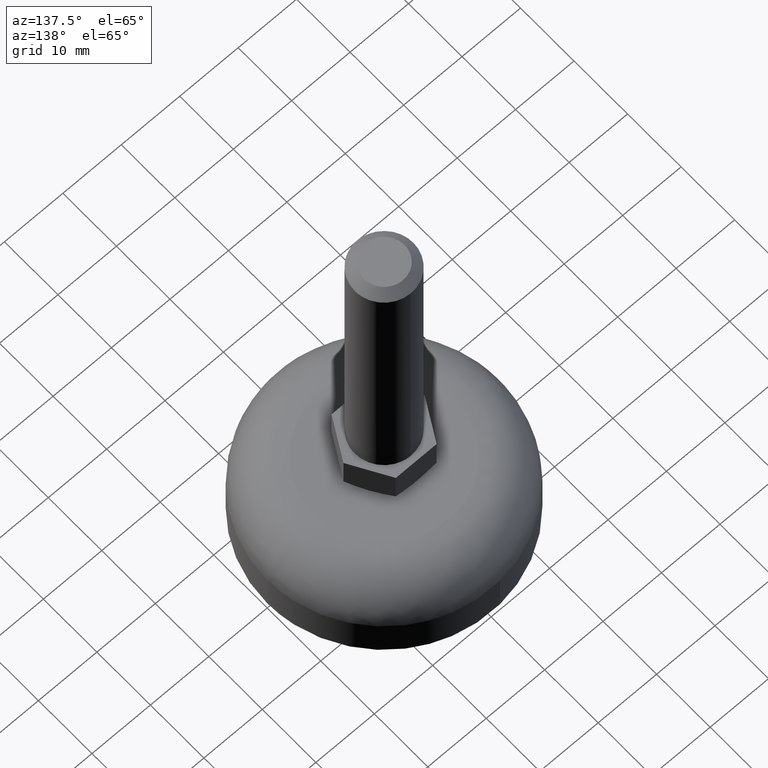
[diagram: clean part render]
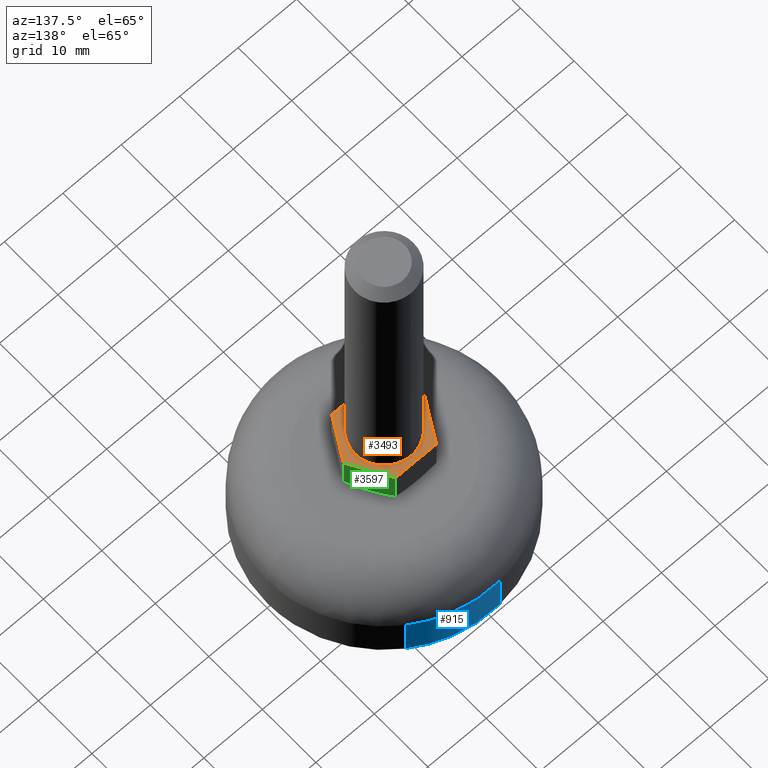
[diagram: same view with three faces highlighted in distinct colors, each labeled with its STEP entity id]
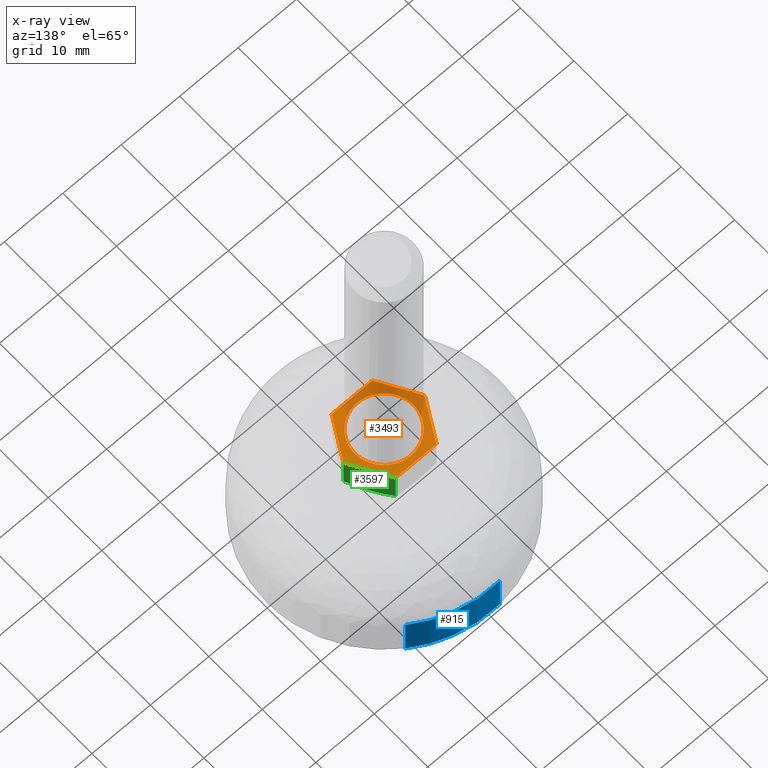
[diagram: x-ray of the same camera — body ghosted, the three highlighted faces saturated]
A machine part, auxiliary view with three faces highlighted in distinct colors.
The next image is the same camera in x-ray (body ghosted, the three faces saturated) — at least one of them is partly hidden behind the body in this view.
Their STEP definitions:

[orange] entity #3493 — the highlighted face is a freeform B-spline surface patch.
#2852=CARTESIAN_POINT('',(-5.0,0.0,23.0));
#2853=VERTEX_POINT('',#2852);
#2854=CARTESIAN_POINT('',(-0.620631688118916,-4.961332110193019,23.000000000000011));
#2855=VERTEX_POINT('',#2854);
#2856=CARTESIAN_POINT('',(-5.0,0.0,23.0));
#2857=CARTESIAN_POINT('',(-5.0,-4.413500461777868,22.999999999999993));
#2858=CARTESIAN_POINT('',(-0.620631688118916,-4.961332110193019,23.000000000000018));
#2866=(BOUNDED_CURVE()B_SPLINE_CURVE(2,(#2856,#2857,#2858),.UNSPECIFIED.,.F.,.U.)B_SPLINE_CURVE_WITH_KNOTS((3,3),(0.500000000000000,0.728526353920877),.UNSPECIFIED.)CURVE()GEOMETRIC_REPRESENTATION_ITEM()RATIONAL_B_SPLINE_CURVE((1.0,0.732264722465648,0.954005979258652))REPRESENTATION_ITEM(''));
#2867=EDGE_CURVE('',#2853,#2855,#2866,.T.);
#2876=CARTESIAN_POINT('',(0.043632677597368,4.999809615319935,23.0));
#2877=VERTEX_POINT('',#2876);
#2883=CARTESIAN_POINT('',(0.043632677597368,4.999809615319935,23.000000000000004));
#2884=CARTESIAN_POINT('',(0.021816754209012,5.0,23.000000000000004));
#2885=CARTESIAN_POINT('',(0.0,5.0,23.0));
#2886=CARTESIAN_POINT('',(-5.000000000000001,5.000000000000001,22.999999999999993));
#2887=CARTESIAN_POINT('',(-5.0,0.0,23.0));
#2895=(BOUNDED_CURVE()B_SPLINE_CURVE(2,(#2883,#2884,#2885,#2886,#2887),.UNSPECIFIED.,.F.,.U.)B_SPLINE_CURVE_WITH_KNOTS((3,2,3),(0.248460105657580,0.250000000000000,0.500000000000000),.UNSPECIFIED.)CURVE()GEOMETRIC_REPRESENTATION_ITEM()RATIONAL_B_SPLINE_CURVE((0.996414028083203,0.998195901557663,1.0,0.707106781186548,1.0))REPRESENTATION_ITEM(''));
#2896=EDGE_CURVE('',#2877,#2853,#2895,.T.);
#2923=CARTESIAN_POINT('',(5.0,0.0,23.0));
#2924=VERTEX_POINT('',#2923);
#2925=CARTESIAN_POINT('',(-0.620631688118916,-4.961332110193019,23.000000000000018));
#2926=CARTESIAN_POINT('',(-0.311520427817223,-5.0,23.0));
#2927=CARTESIAN_POINT('',(0.0,-5.0,23.0));
#2928=CARTESIAN_POINT('',(5.000000000000001,-5.000000000000001,22.999999999999993));
#2929=CARTESIAN_POINT('',(5.0,0.0,23.0));
#2937=(BOUNDED_CURVE()B_SPLINE_CURVE(2,(#2925,#2926,#2927,#2928,#2929),.UNSPECIFIED.,.F.,.U.)B_SPLINE_CURVE_WITH_KNOTS((3,2,3),(0.728526353920877,0.750000000000000,1.0),.UNSPECIFIED.)CURVE()GEOMETRIC_REPRESENTATION_ITEM()RATIONAL_B_SPLINE_CURVE((0.954005979258652,0.974842058720899,1.0,0.707106781186548,1.0))REPRESENTATION_ITEM(''));
#2938=EDGE_CURVE('',#2855,#2924,#2937,.T.);
#2940=CARTESIAN_POINT('',(5.0,0.0,23.0));
#2941=CARTESIAN_POINT('',(4.999999999999998,4.956556052765714,23.000000000000004));
#2942=CARTESIAN_POINT('',(0.043632677597368,4.999809615319935,23.000000000000004));
#2950=(BOUNDED_CURVE()B_SPLINE_CURVE(2,(#2940,#2941,#2942),.UNSPECIFIED.,.F.,.U.)B_SPLINE_CURVE_WITH_KNOTS((3,3),(0.0,0.248460105657580),.UNSPECIFIED.)CURVE()GEOMETRIC_REPRESENTATION_ITEM()RATIONAL_B_SPLINE_CURVE((1.0,0.708910879628884,0.996414028083203))REPRESENTATION_ITEM(''));
#2951=EDGE_CURVE('',#2924,#2877,#2950,.T.);
#3438=CARTESIAN_POINT('',(-7.644304792915282,-6.599399976741669,23.0));
#3439=CARTESIAN_POINT('',(7.644304295812545,-6.599399976741669,23.0));
#3440=CARTESIAN_POINT('',(-7.644304792915282,6.599400298606649,23.0));
#3441=CARTESIAN_POINT('',(7.644304295812545,6.599400298606649,23.0));
#3442=B_SPLINE_SURFACE_WITH_KNOTS('',1,1,((#3438,#3440),(#3439,#3441)),.UNSPECIFIED.,.F.,.F.,.U.,(2,2),(2,2),(0.0,15.288609088727830),(0.0,13.198800275348320),.UNSPECIFIED.);
#3443=CARTESIAN_POINT('',(-6.949999999999999,0.0,23.0));
#3444=VERTEX_POINT('',#3443);
#3445=CARTESIAN_POINT('',(-3.485898000000000,5.999999999999901,23.0));
#3446=VERTEX_POINT('',#3445);
#3447=CARTESIAN_POINT('',(-6.949999999999999,0.0,23.0));
#3448=CARTESIAN_POINT('',(-3.485898000000000,5.999999999999901,23.0));
#3449=QUASI_UNIFORM_CURVE('',1,(#3447,#3448),.UNSPECIFIED.,.F.,.U.);
#3450=EDGE_CURVE('',#3444,#3446,#3449,.T.);
#3451=ORIENTED_EDGE('',*,*,#3450,.F.);
#3452=CARTESIAN_POINT('',(-3.485898000000000,-6.0,23.0));
#3453=VERTEX_POINT('',#3452);
#3454=CARTESIAN_POINT('',(-3.485898000000000,-6.0,23.0));
#3455=CARTESIAN_POINT('',(-6.949999999999999,0.0,23.0));
#3456=QUASI_UNIFORM_CURVE('',1,(#3454,#3455),.UNSPECIFIED.,.F.,.U.);
#3457=EDGE_CURVE('',#3453,#3444,#3456,.T.);
#3458=ORIENTED_EDGE('',*,*,#3457,.F.);
#3459=CARTESIAN_POINT('',(3.485899000000000,-6.0,23.0));
#3460=VERTEX_POINT('',#3459);
#3461=CARTESIAN_POINT('',(3.485899000000000,-6.0,23.0));
#3462=CARTESIAN_POINT('',(-3.485898000000000,-6.0,23.0));
#3463=QUASI_UNIFORM_CURVE('',1,(#3461,#3462),.UNSPECIFIED.,.F.,.U.);
#3464=EDGE_CURVE('',#3460,#3453,#3463,.T.);
#3465=ORIENTED_EDGE('',*,*,#3464,.F.);
#3466=CARTESIAN_POINT('',(6.949999999999999,0.0,23.0));
#3467=VERTEX_POINT('',#3466);
#3468=CARTESIAN_POINT('',(6.949999999999999,0.0,23.0));
#3469=CARTESIAN_POINT('',(3.485899000000000,-6.0,23.0));
#3470=QUASI_UNIFORM_CURVE('',1,(#3468,#3469),.UNSPECIFIED.,.F.,.U.);
#3471=EDGE_CURVE('',#3467,#3460,#3470,.T.);
#3472=ORIENTED_EDGE('',*,*,#3471,.F.);
#3473=CARTESIAN_POINT('',(3.485899000000000,5.999999999999901,23.0));
#3474=VERTEX_POINT('',#3473);
#3475=CARTESIAN_POINT('',(3.485899000000000,5.999999999999901,23.0));
#3476=CARTESIAN_POINT('',(6.949999999999999,0.0,23.0));
#3477=QUASI_UNIFORM_CURVE('',1,(#3475,#3476),.UNSPECIFIED.,.F.,.U.);
#3478=EDGE_CURVE('',#3474,#3467,#3477,.T.);
#3479=ORIENTED_EDGE('',*,*,#3478,.F.);
#3480=CARTESIAN_POINT('',(-3.485898000000000,5.999999999999901,23.0));
#3481=CARTESIAN_POINT('',(3.485899000000000,5.999999999999901,23.0));
#3482=QUASI_UNIFORM_CURVE('',1,(#3480,#3481),.UNSPECIFIED.,.F.,.U.);
#3483=EDGE_CURVE('',#3446,#3474,#3482,.T.);
#3484=ORIENTED_EDGE('',*,*,#3483,.F.);
#3485=EDGE_LOOP('',(#3451,#3458,#3465,#3472,#3479,#3484));
#3486=FACE_OUTER_BOUND('',#3485,.T.);
#3487=ORIENTED_EDGE('',*,*,#2951,.F.);
#3488=ORIENTED_EDGE('',*,*,#2938,.F.);
#3489=ORIENTED_EDGE('',*,*,#2867,.F.);
#3490=ORIENTED_EDGE('',*,*,#2896,.F.);
#3491=EDGE_LOOP('',(#3487,#3488,#3489,#3490));
#3492=FACE_BOUND('',#3491,.T.);
#3493=ADVANCED_FACE('',(#3486,#3492),#3442,.T.);

[blue] entity #915 — the highlighted face is a freeform B-spline surface patch.
#726=CARTESIAN_POINT('',(11.416802232490300,16.421224886840221,7.000000000003430));
#727=VERTEX_POINT('',#726);
#790=CARTESIAN_POINT('',(-1.569161674606889,19.938348267560489,7.000000000000140));
#791=VERTEX_POINT('',#790);
#805=CARTESIAN_POINT('',(-1.569161918544817,19.938348248362662,-1.804112E-016));
#806=VERTEX_POINT('',#805);
#807=CARTESIAN_POINT('',(-1.569161674606889,19.938348267560489,7.000000000000140));
#808=CARTESIAN_POINT('',(-1.569161918544817,19.938348248362662,-1.804112E-016));
#809=QUASI_UNIFORM_CURVE('',1,(#807,#808),.UNSPECIFIED.,.F.,.U.);
#810=EDGE_CURVE('',#791,#806,#809,.T.);
#844=CARTESIAN_POINT('',(11.416802135219770,16.421224954467679,2.432815E-016));
#845=VERTEX_POINT('',#844);
#859=CARTESIAN_POINT('',(11.416802232490300,16.421224886840221,7.000000000003430));
#860=CARTESIAN_POINT('',(11.416802135219770,16.421224954467679,2.432815E-016));
#861=QUASI_UNIFORM_CURVE('',1,(#859,#860),.UNSPECIFIED.,.F.,.U.);
#862=EDGE_CURVE('',#727,#845,#861,.T.);
#867=CARTESIAN_POINT('',(-1.569181914556886,19.938346674662551,7.175000000019175));
#868=CARTESIAN_POINT('',(5.551889728509131,20.498787167392237,7.175000000019175));
#869=CARTESIAN_POINT('',(11.416804649805236,16.421223206210470,7.175000000019175));
#870=CARTESIAN_POINT('',(-1.569181914556886,19.938346674662551,-0.179375000000480));
#871=CARTESIAN_POINT('',(5.551889728509131,20.498787167392237,-0.179375000000480));
#872=CARTESIAN_POINT('',(11.416804649805236,16.421223206210470,-0.179375000000480));
#880=(BOUNDED_SURFACE()B_SPLINE_SURFACE(2,1,((#867,#870),(#868,#871),(#869,#872)),.UNSPECIFIED.,.F.,.F.,.U.)B_SPLINE_SURFACE_WITH_KNOTS((3,3),(2,2),(0.0,14.544383323548089),(0.0,7.354375000019655),.UNSPECIFIED.)GEOMETRIC_REPRESENTATION_ITEM()RATIONAL_B_SPLINE_SURFACE(((1.0,1.0),(0.871126983722081,0.871126983722081),(0.855662221768731,0.855662221768731)))REPRESENTATION_ITEM('')SURFACE());
#881=CARTESIAN_POINT('',(-1.569161674606889,19.938348267560492,7.000000000000140));
#882=CARTESIAN_POINT('',(-0.785791973215792,20.000000000000004,7.000000000000001));
#883=CARTESIAN_POINT('',(0.0,20.0,7.0));
#884=CARTESIAN_POINT('',(6.269312615356380,20.000000000000007,7.000000000000003));
#885=CARTESIAN_POINT('',(11.416802232490303,16.421224886840221,7.000000000003430));
#893=(BOUNDED_CURVE()B_SPLINE_CURVE(2,(#881,#882,#883,#884,#885),.UNSPECIFIED.,.F.,.U.)B_SPLINE_CURVE_WITH_KNOTS((3,2,3),(0.236331474650379,0.250000000000000,0.348090586550333),.UNSPECIFIED.)CURVE()GEOMETRIC_REPRESENTATION_ITEM()RATIONAL_B_SPLINE_CURVE((0.969723719333581,0.983986326455665,1.0,0.885079729479894,0.860340232894509))REPRESENTATION_ITEM(''));
#894=EDGE_CURVE('',#791,#727,#893,.T.);
#895=ORIENTED_EDGE('',*,*,#894,.T.);
#896=ORIENTED_EDGE('',*,*,#862,.T.);
#897=CARTESIAN_POINT('',(-1.569161918544818,19.938348248362651,-1.804112E-016));
#898=CARTESIAN_POINT('',(-0.785792095750752,20.000000000000004,0.0));
#899=CARTESIAN_POINT('',(0.0,20.0,0.0));
#900=CARTESIAN_POINT('',(6.269312550301457,19.999999999999996,0.0));
#901=CARTESIAN_POINT('',(11.416802135219768,16.421224954467679,2.432815E-016));
#909=(BOUNDED_CURVE()B_SPLINE_CURVE(2,(#897,#898,#899,#900,#901),.UNSPECIFIED.,.F.,.U.)B_SPLINE_CURVE_WITH_KNOTS((3,2,3),(0.236331472553067,0.250000000000000,0.348090585649447),.UNSPECIFIED.)CURVE()GEOMETRIC_REPRESENTATION_ITEM()RATIONAL_B_SPLINE_CURVE((0.969723714956643,0.983986323998511,1.0,0.885079730535348,0.860340233348935))REPRESENTATION_ITEM(''));
#910=EDGE_CURVE('',#806,#845,#909,.T.);
#911=ORIENTED_EDGE('',*,*,#910,.F.);
#912=ORIENTED_EDGE('',*,*,#810,.F.);
#913=EDGE_LOOP('',(#895,#896,#911,#912));
#914=FACE_OUTER_BOUND('',#913,.T.);
#915=ADVANCED_FACE('',(#914),#880,.T.);

[green] entity #3597 — the highlighted face is a freeform B-spline surface patch.
#3072=CARTESIAN_POINT('',(5.118743044111630,3.171830652550265,17.0));
#3073=VERTEX_POINT('',#3072);
#3074=CARTESIAN_POINT('',(3.485899000000000,5.999999999999901,17.529621023767952));
#3075=VERTEX_POINT('',#3074);
#3076=CARTESIAN_POINT('',(5.118743044111630,3.171830652550265,17.0));
#3077=CARTESIAN_POINT('',(5.006338515542149,3.366521041605572,17.004051567667549));
#3078=CARTESIAN_POINT('',(4.893668415329562,3.561671414321472,17.015371312865319));
#3079=CARTESIAN_POINT('',(4.707308066506740,3.884457064317504,17.045932529441249));
#3080=CARTESIAN_POINT('',(4.633615872458934,4.012095711194958,17.061044928880250));
#3081=CARTESIAN_POINT('',(4.486783639327298,4.266416644328778,17.096961131312302));
#3082=CARTESIAN_POINT('',(4.413782956002295,4.392857559287669,17.117714074270388));
#3083=CARTESIAN_POINT('',(4.050688049230276,5.021756497462990,17.234318356236130));
#3084=CARTESIAN_POINT('',(3.766291170662691,5.514346428127682,17.368498783346372));
#3085=CARTESIAN_POINT('',(3.485899000000000,5.999999999999901,17.529621023767952));
#3086=B_SPLINE_CURVE_WITH_KNOTS('',3,(#3076,#3077,#3078,#3079,#3080,#3081,#3082,#3083,#3084,#3085),.UNSPECIFIED.,.F.,.U.,(4,2,2,2,4),(0.528873118199121,0.625000000000000,0.687500000000000,0.750000000000000,1.0),.UNSPECIFIED.);
#3087=EDGE_CURVE('',#3073,#3075,#3086,.T.);
#3390=CARTESIAN_POINT('',(6.949999999999999,-1.625827E-015,17.535898207287399));
#3391=VERTEX_POINT('',#3390);
#3405=CARTESIAN_POINT('',(5.306257881497830,2.847045369350625,17.0));
#3406=VERTEX_POINT('',#3405);
#3420=CARTESIAN_POINT('',(6.949999999999999,-1.625827E-015,17.535898207287399));
#3421=CARTESIAN_POINT('',(6.879360349123134,0.122351486074217,17.495114189080891));
#3422=CARTESIAN_POINT('',(6.808401464642652,0.245255901067571,17.456009337212159));
#3423=CARTESIAN_POINT('',(6.665765518098662,0.492308651337821,17.381577242123349));
#3424=CARTESIAN_POINT('',(6.594003347580982,0.616604398807673,17.346215507114291));
#3425=CARTESIAN_POINT('',(6.378667297844066,0.989577443883866,17.246991094553071));
#3426=CARTESIAN_POINT('',(6.234780970162809,1.238795918197266,17.189844507877691));
#3427=CARTESIAN_POINT('',(5.946241810425218,1.738560491581684,17.096529053879021));
#3428=CARTESIAN_POINT('',(5.801588257760975,1.989107838782423,17.060379908178732));
#3429=CARTESIAN_POINT('',(5.540037165722231,2.442127699413639,17.016297930025171));
#3430=CARTESIAN_POINT('',(5.423291174239878,2.644337724148513,17.004217529399611));
#3431=CARTESIAN_POINT('',(5.306257881497830,2.847045369350625,17.0));
#3432=B_SPLINE_CURVE_WITH_KNOTS('',3,(#3420,#3421,#3422,#3423,#3424,#3425,#3426,#3427,#3428,#3429,#3430,#3431),.UNSPECIFIED.,.F.,.U.,(4,2,2,2,2,4),(0.0,0.062500000000000,0.125000000000000,0.250000000000000,0.375000000000000,0.475349267232589),.UNSPECIFIED.);
#3433=EDGE_CURVE('',#3391,#3406,#3432,.T.);
#3466=CARTESIAN_POINT('',(6.949999999999999,0.0,23.0));
#3467=VERTEX_POINT('',#3466);
#3473=CARTESIAN_POINT('',(3.485899000000000,5.999999999999901,23.0));
#3474=VERTEX_POINT('',#3473);
#3475=CARTESIAN_POINT('',(3.485899000000000,5.999999999999901,23.0));
#3476=CARTESIAN_POINT('',(6.949999999999999,0.0,23.0));
#3477=QUASI_UNIFORM_CURVE('',1,(#3475,#3476),.UNSPECIFIED.,.F.,.U.);
#3478=EDGE_CURVE('',#3474,#3467,#3477,.T.);
#3567=CARTESIAN_POINT('',(6.949999999999999,0.0,23.0));
#3568=CARTESIAN_POINT('',(6.949999999999999,-1.625827E-015,17.535898207287399));
#3569=QUASI_UNIFORM_CURVE('',1,(#3567,#3568),.UNSPECIFIED.,.F.,.U.);
#3570=EDGE_CURVE('',#3467,#3391,#3569,.T.);
#3576=CARTESIAN_POINT('',(7.123031805717406,-0.299699932047120,16.700300011629160));
#3577=CARTESIAN_POINT('',(3.312867070396695,6.299700146623744,16.700300011629160));
#3578=CARTESIAN_POINT('',(7.123031805717406,-0.299699932047120,23.299700149303380));
#3579=CARTESIAN_POINT('',(3.312867070396695,6.299700146623744,23.299700149303380));
#3580=B_SPLINE_SURFACE_WITH_KNOTS('',1,1,((#3576,#3578),(#3577,#3579)),.UNSPECIFIED.,.F.,.F.,.U.,(2,2),(2,2),(0.0,7.620330485526369),(0.0,6.599400137674216),.UNSPECIFIED.);
#3581=ORIENTED_EDGE('',*,*,#3570,.T.);
#3582=ORIENTED_EDGE('',*,*,#3433,.T.);
#3583=CARTESIAN_POINT('',(5.118743044111630,3.171830652550265,17.0));
#3584=CARTESIAN_POINT('',(5.306257881497830,2.847045369350625,17.0));
#3585=QUASI_UNIFORM_CURVE('',1,(#3583,#3584),.UNSPECIFIED.,.F.,.U.);
#3586=EDGE_CURVE('',#3073,#3406,#3585,.T.);
#3587=ORIENTED_EDGE('',*,*,#3586,.F.);
#3588=ORIENTED_EDGE('',*,*,#3087,.T.);
#3589=CARTESIAN_POINT('',(3.485899000000000,5.999999999999901,23.0));
#3590=CARTESIAN_POINT('',(3.485899000000000,5.999999999999901,17.529621023767952));
#3591=QUASI_UNIFORM_CURVE('',1,(#3589,#3590),.UNSPECIFIED.,.F.,.U.);
#3592=EDGE_CURVE('',#3474,#3075,#3591,.T.);
#3593=ORIENTED_EDGE('',*,*,#3592,.F.);
#3594=ORIENTED_EDGE('',*,*,#3478,.T.);
#3595=EDGE_LOOP('',(#3581,#3582,#3587,#3588,#3593,#3594));
#3596=FACE_OUTER_BOUND('',#3595,.T.);
#3597=ADVANCED_FACE('',(#3596),#3580,.T.);